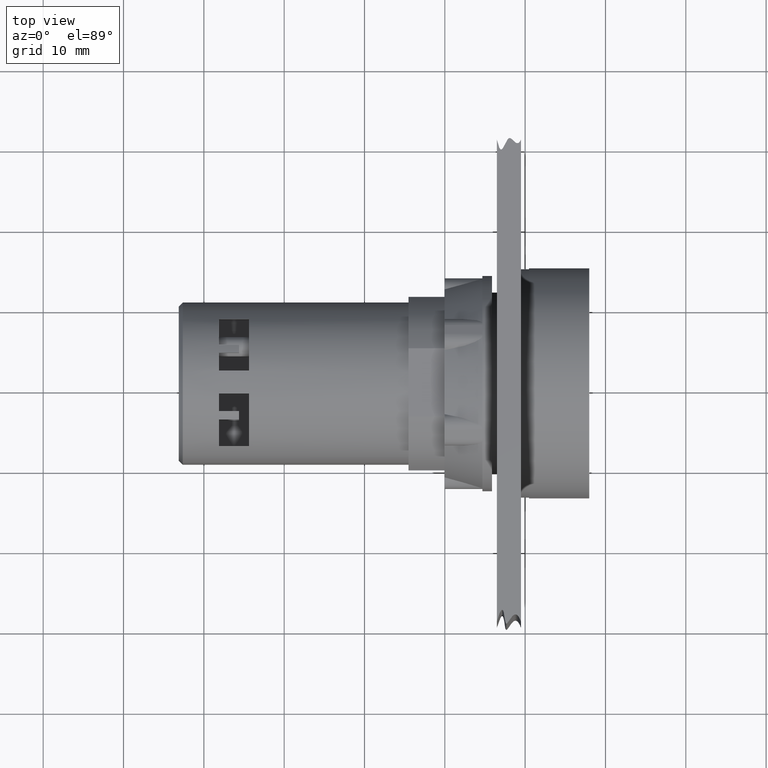
[diagram: clean part render]
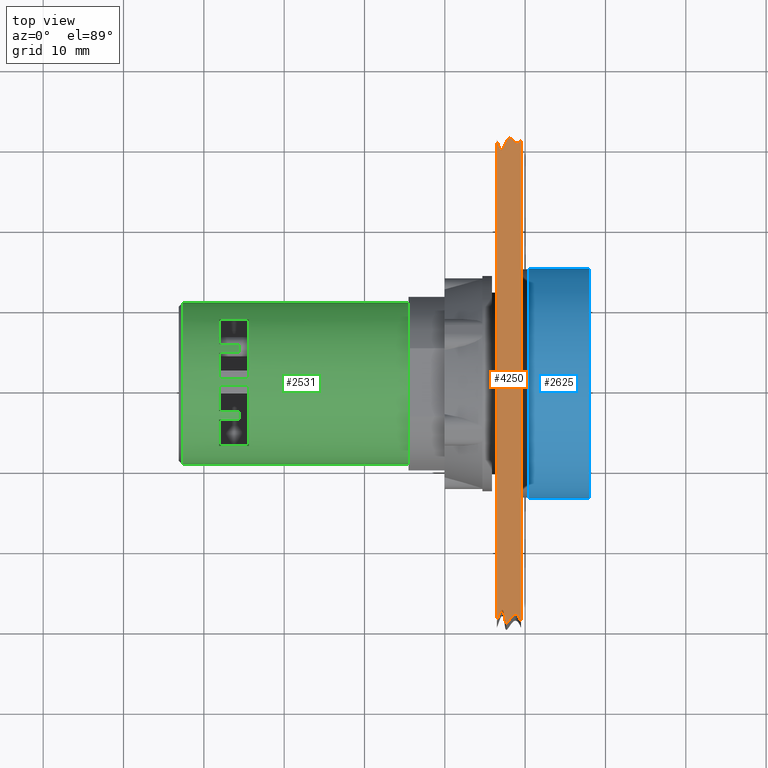
[diagram: same view with three faces highlighted in distinct colors, each labeled with its STEP entity id]
A machine part, top view with three faces highlighted in distinct colors.
Their STEP definitions:

[orange] entity #4250 — the highlighted planar face has unit normal (0, 0, -1).
#4112=CARTESIAN_POINT('',(-12.704183619849179,-2.725398273954287,0.0));
#4113=VERTEX_POINT('',#4112);
#4120=CARTESIAN_POINT('',(-15.704183619849179,-2.725398273954287,0.0));
#4121=VERTEX_POINT('',#4120);
#4122=CARTESIAN_POINT('',(-12.704183619849175,-2.725398273954286,0.0));
#4123=CARTESIAN_POINT('',(-13.683988853155304,-7.243589001706696,0.0));
#4124=CARTESIAN_POINT('',(-13.964099132856656,2.032835085571791,0.0));
#4125=CARTESIAN_POINT('',(-14.667084388146536,-4.961008747338168,0.0));
#4126=CARTESIAN_POINT('',(-15.704183619849177,-2.725398273954286,0.0));
#4127=QUASI_UNIFORM_CURVE('',4,(#4122,#4123,#4124,#4125,#4126),.UNSPECIFIED.,.F.,.U.);
#4128=EDGE_CURVE('',#4113,#4121,#4127,.T.);
#4152=CARTESIAN_POINT('',(-12.704183619849172,-62.725398273954283,0.0));
#4153=VERTEX_POINT('',#4152);
#4160=CARTESIAN_POINT('',(-12.704183619849172,-62.725398273954283,0.0));
#4161=DIRECTION('',(0.0,1.0,0.0));
#4162=VECTOR('',#4161,60.0);
#4163=LINE('',#4160,#4162);
#4164=EDGE_CURVE('',#4153,#4113,#4163,.T.);
#4194=CARTESIAN_POINT('',(-15.704183619849179,-62.725398273954283,0.0));
#4195=VERTEX_POINT('',#4194);
#4202=CARTESIAN_POINT('',(-15.704183619849182,-62.725398273954283,0.0));
#4203=CARTESIAN_POINT('',(-14.283734517597093,-58.710287807173117,0.0));
#4204=CARTESIAN_POINT('',(-13.047229203726467,-69.825373706267470,0.0));
#4205=CARTESIAN_POINT('',(-14.371498841514271,-57.028426828334801,0.0));
#4206=CARTESIAN_POINT('',(-12.704183619849177,-62.725398273954298,0.0));
#4207=QUASI_UNIFORM_CURVE('',4,(#4202,#4203,#4204,#4205,#4206),.UNSPECIFIED.,.F.,.U.);
#4208=EDGE_CURVE('',#4195,#4153,#4207,.T.);
#4226=CARTESIAN_POINT('',(-15.704183619849179,-2.725398273954287,0.0));
#4227=DIRECTION('',(0.0,-1.0,0.0));
#4228=VECTOR('',#4227,60.0);
#4229=LINE('',#4226,#4228);
#4230=EDGE_CURVE('',#4121,#4195,#4229,.T.);
#4239=CARTESIAN_POINT('',(-14.194110455510167,-33.005767774691193,0.0));
#4240=DIRECTION('',(0.0,0.0,1.0));
#4241=DIRECTION('',(1.0,0.0,0.0));
#4242=AXIS2_PLACEMENT_3D('',#4239,#4240,#4241);
#4243=PLANE('',#4242);
#4244=ORIENTED_EDGE('',*,*,#4230,.F.);
#4245=ORIENTED_EDGE('',*,*,#4128,.F.);
#4246=ORIENTED_EDGE('',*,*,#4164,.F.);
#4247=ORIENTED_EDGE('',*,*,#4208,.F.);
#4248=EDGE_LOOP('',(#4244,#4245,#4246,#4247));
#4249=FACE_OUTER_BOUND('',#4248,.T.);
#4250=ADVANCED_FACE('',(#4249),#4243,.F.);

[blue] entity #2625 — the highlighted cylindrical surface (bore or boss wall) has radius 14.35 mm, axis along (1, 0, 0).
#2591=CARTESIAN_POINT('',(0.477402920957430,15.099713552126415,0.0));
#2592=VERTEX_POINT('',#2591);
#2593=CARTESIAN_POINT('',(0.477402920957430,0.749713552126411,0.0));
#2594=DIRECTION('',(1.0,1.449993E-013,0.0));
#2595=DIRECTION('',(-1.449993E-013,1.0,0.0));
#2596=AXIS2_PLACEMENT_3D('',#2593,#2594,#2595);
#2597=CIRCLE('',#2596,14.350000000000005);
#2598=EDGE_CURVE('',#2592,#2592,#2597,.T.);
#2606=CARTESIAN_POINT('',(4.227402920957431,0.749713552126411,0.0));
#2607=DIRECTION('',(1.0,0.0,0.0));
#2608=DIRECTION('',(-1.449993E-013,1.0,0.0));
#2609=AXIS2_PLACEMENT_3D('',#2606,#2607,#2608);
#2610=CYLINDRICAL_SURFACE('',#2609,14.350000000000007);
#2611=CARTESIAN_POINT('',(7.977402920957431,15.099713552126417,0.0));
#2612=VERTEX_POINT('',#2611);
#2613=CARTESIAN_POINT('',(7.977402920957431,0.749713552126411,0.0));
#2614=DIRECTION('',(1.0,1.449993E-013,0.0));
#2615=DIRECTION('',(-1.449993E-013,1.0,0.0));
#2616=AXIS2_PLACEMENT_3D('',#2613,#2614,#2615);
#2617=CIRCLE('',#2616,14.350000000000007);
#2618=EDGE_CURVE('',#2612,#2612,#2617,.T.);
#2619=ORIENTED_EDGE('',*,*,#2618,.F.);
#2620=EDGE_LOOP('',(#2619));
#2621=FACE_OUTER_BOUND('',#2620,.T.);
#2622=ORIENTED_EDGE('',*,*,#2598,.T.);
#2623=EDGE_LOOP('',(#2622));
#2624=FACE_BOUND('',#2623,.T.);
#2625=ADVANCED_FACE('',(#2621,#2624),#2610,.T.);

[green] entity #2531 — the highlighted cylindrical surface (bore or boss wall) has radius 10.1 mm, axis along (1, 0, 0).
#112=CARTESIAN_POINT('',(-38.122597079042563,1.179182738147887,-10.090864988605190));
#113=VERTEX_POINT('',#112);
#114=CARTESIAN_POINT('',(-34.372597079042571,1.179182738147886,-10.090864988605190));
#115=VERTEX_POINT('',#114);
#116=CARTESIAN_POINT('',(-38.122597079042563,1.179182738147887,-10.090864988605190));
#117=DIRECTION('',(1.0,0.0,0.0));
#118=VECTOR('',#117,3.749999999999993);
#119=LINE('',#116,#118);
#120=EDGE_CURVE('',#113,#115,#119,.T.);
#152=CARTESIAN_POINT('',(-38.122597079042563,4.429182738147889,-9.405929327244515));
#153=VERTEX_POINT('',#152);
#154=CARTESIAN_POINT('',(-38.122597079042563,0.749713552126411,0.0));
#155=DIRECTION('',(-1.0,-1.449993E-013,0.0));
#156=DIRECTION('',(-1.449993E-013,1.0,0.0));
#157=AXIS2_PLACEMENT_3D('',#154,#155,#156);
#158=CIRCLE('',#157,10.100000000000000);
#159=EDGE_CURVE('',#153,#113,#158,.T.);
#232=CARTESIAN_POINT('',(-35.622597079042563,4.429182738147887,-9.405929327244515));
#233=VERTEX_POINT('',#232);
#234=CARTESIAN_POINT('',(-35.622597079042563,4.429182738147887,-9.405929327244515));
#235=DIRECTION('',(-1.0,0.0,0.0));
#236=VECTOR('',#235,2.500000000000000);
#237=LINE('',#234,#236);
#238=EDGE_CURVE('',#233,#153,#237,.T.);
#295=CARTESIAN_POINT('',(-35.622597079042563,5.429182738147888,-8.950562448085343));
#296=VERTEX_POINT('',#295);
#297=CARTESIAN_POINT('',(-35.622597079042563,0.749713552126411,0.0));
#298=DIRECTION('',(-1.0,-1.449993E-013,0.0));
#299=DIRECTION('',(-1.449993E-013,1.0,0.0));
#300=AXIS2_PLACEMENT_3D('',#297,#298,#299);
#301=CIRCLE('',#300,10.100000000000000);
#302=EDGE_CURVE('',#296,#233,#301,.T.);
#359=CARTESIAN_POINT('',(-34.372597079042571,8.679182738147890,-6.255678894247679));
#360=VERTEX_POINT('',#359);
#361=CARTESIAN_POINT('',(-34.372597079042571,0.749713552126411,0.0));
#362=DIRECTION('',(1.0,1.449993E-013,0.0));
#363=DIRECTION('',(-1.449993E-013,1.0,0.0));
#364=AXIS2_PLACEMENT_3D('',#361,#362,#363);
#365=CIRCLE('',#364,10.100000000000000);
#366=EDGE_CURVE('',#115,#360,#365,.T.);
#402=CARTESIAN_POINT('',(-38.122597079042563,8.679182738147890,-6.255678894247679));
#403=VERTEX_POINT('',#402);
#404=CARTESIAN_POINT('',(-34.372597079042571,8.679182738147890,-6.255678894247679));
#405=DIRECTION('',(-1.0,0.0,0.0));
#406=VECTOR('',#405,3.749999999999993);
#407=LINE('',#404,#406);
#408=EDGE_CURVE('',#360,#403,#407,.T.);
#433=CARTESIAN_POINT('',(-38.122597079042571,5.429182738147888,-8.950562448085343));
#434=VERTEX_POINT('',#433);
#435=CARTESIAN_POINT('',(-38.122597079042563,0.749713552126411,0.0));
#436=DIRECTION('',(-1.0,-1.449993E-013,0.0));
#437=DIRECTION('',(-1.449993E-013,1.0,0.0));
#438=AXIS2_PLACEMENT_3D('',#435,#436,#437);
#439=CIRCLE('',#438,10.100000000000000);
#440=EDGE_CURVE('',#403,#434,#439,.T.);
#473=CARTESIAN_POINT('',(-38.122597079042571,5.429182738147888,-8.950562448085343));
#474=DIRECTION('',(1.0,0.0,0.0));
#475=VECTOR('',#474,2.500000000000007);
#476=LINE('',#473,#475);
#477=EDGE_CURVE('',#434,#296,#476,.T.);
#511=CARTESIAN_POINT('',(-38.122597079042578,-7.120817261852111,-6.329671769232159));
#512=VERTEX_POINT('',#511);
#513=CARTESIAN_POINT('',(-34.372597079042585,-7.120817261852111,-6.329671769232159));
#514=VERTEX_POINT('',#513);
#515=CARTESIAN_POINT('',(-38.122597079042578,-7.120817261852111,-6.329671769232159));
#516=DIRECTION('',(1.0,0.0,0.0));
#517=VECTOR('',#516,3.749999999999993);
#518=LINE('',#515,#517);
#519=EDGE_CURVE('',#512,#514,#518,.T.);
#551=CARTESIAN_POINT('',(-38.122597079042578,-3.870817261852113,-8.981129939883676));
#552=VERTEX_POINT('',#551);
#553=CARTESIAN_POINT('',(-38.122597079042578,0.749713552126411,0.0));
#554=DIRECTION('',(-1.0,-1.449993E-013,0.0));
#555=DIRECTION('',(-1.449993E-013,1.0,0.0));
#556=AXIS2_PLACEMENT_3D('',#553,#554,#555);
#557=CIRCLE('',#556,10.100000000000000);
#558=EDGE_CURVE('',#552,#512,#557,.T.);
#631=CARTESIAN_POINT('',(-35.622597079042578,-3.870817261852114,-8.981129939883676));
#632=VERTEX_POINT('',#631);
#633=CARTESIAN_POINT('',(-35.622597079042578,-3.870817261852114,-8.981129939883676));
#634=DIRECTION('',(-1.0,0.0,0.0));
#635=VECTOR('',#634,2.500000000000000);
#636=LINE('',#633,#635);
#637=EDGE_CURVE('',#632,#552,#636,.T.);
#694=CARTESIAN_POINT('',(-35.622597079042578,-2.870817261852113,-9.428772805886883));
#695=VERTEX_POINT('',#694);
#696=CARTESIAN_POINT('',(-35.622597079042578,0.749713552126411,0.0));
#697=DIRECTION('',(-1.0,-1.449993E-013,0.0));
#698=DIRECTION('',(-1.449993E-013,1.0,0.0));
#699=AXIS2_PLACEMENT_3D('',#696,#697,#698);
#700=CIRCLE('',#699,10.100000000000000);
#701=EDGE_CURVE('',#695,#632,#700,.T.);
#758=CARTESIAN_POINT('',(-34.372597079042585,0.379182738147886,-10.093201024248570));
#759=VERTEX_POINT('',#758);
#760=CARTESIAN_POINT('',(-34.372597079042585,0.749713552126411,0.0));
#761=DIRECTION('',(1.0,1.449993E-013,0.0));
#762=DIRECTION('',(-1.449993E-013,1.0,0.0));
#763=AXIS2_PLACEMENT_3D('',#760,#761,#762);
#764=CIRCLE('',#763,10.100000000000000);
#765=EDGE_CURVE('',#514,#759,#764,.T.);
#801=CARTESIAN_POINT('',(-38.122597079042571,0.379182738147887,-10.093201024248570));
#802=VERTEX_POINT('',#801);
#803=CARTESIAN_POINT('',(-34.372597079042585,0.379182738147886,-10.093201024248570));
#804=DIRECTION('',(-1.0,0.0,0.0));
#805=VECTOR('',#804,3.749999999999986);
#806=LINE('',#803,#805);
#807=EDGE_CURVE('',#759,#802,#806,.T.);
#832=CARTESIAN_POINT('',(-38.122597079042571,-2.870817261852113,-9.428772805886883));
#833=VERTEX_POINT('',#832);
#834=CARTESIAN_POINT('',(-38.122597079042571,0.749713552126411,0.0));
#835=DIRECTION('',(-1.0,-1.449993E-013,0.0));
#836=DIRECTION('',(-1.449993E-013,1.0,0.0));
#837=AXIS2_PLACEMENT_3D('',#834,#835,#836);
#838=CIRCLE('',#837,10.100000000000000);
#839=EDGE_CURVE('',#802,#833,#838,.T.);
#872=CARTESIAN_POINT('',(-38.122597079042571,-2.870817261852113,-9.428772805886883));
#873=DIRECTION('',(1.0,0.0,0.0));
#874=VECTOR('',#873,2.499999999999993);
#875=LINE('',#872,#874);
#876=EDGE_CURVE('',#833,#695,#875,.T.);
#975=CARTESIAN_POINT('',(-35.622597079042578,-2.870817261852103,9.428772805886887));
#976=VERTEX_POINT('',#975);
#983=CARTESIAN_POINT('',(-35.622597079042578,-3.870817261852102,8.981129939883681));
#984=VERTEX_POINT('',#983);
#985=CARTESIAN_POINT('',(-35.622597079042578,0.749713552126411,0.0));
#986=DIRECTION('',(-1.0,-1.449993E-013,0.0));
#987=DIRECTION('',(-1.449993E-013,1.0,0.0));
#988=AXIS2_PLACEMENT_3D('',#985,#986,#987);
#989=CIRCLE('',#988,10.100000000000000);
#990=EDGE_CURVE('',#984,#976,#989,.T.);
#1015=CARTESIAN_POINT('',(-38.122597079042578,-3.870817261852102,8.981129939883681));
#1016=VERTEX_POINT('',#1015);
#1017=CARTESIAN_POINT('',(-38.122597079042578,-3.870817261852102,8.981129939883681));
#1018=DIRECTION('',(1.0,0.0,0.0));
#1019=VECTOR('',#1018,2.500000000000000);
#1020=LINE('',#1017,#1019);
#1021=EDGE_CURVE('',#1016,#984,#1020,.T.);
#1045=CARTESIAN_POINT('',(-38.122597079042571,-2.870817261852102,9.428772805886887));
#1046=VERTEX_POINT('',#1045);
#1053=CARTESIAN_POINT('',(-35.622597079042578,-2.870817261852103,9.428772805886887));
#1054=DIRECTION('',(-1.0,0.0,0.0));
#1055=VECTOR('',#1054,2.499999999999993);
#1056=LINE('',#1053,#1055);
#1057=EDGE_CURVE('',#976,#1046,#1056,.T.);
#1101=CARTESIAN_POINT('',(-38.122597079042571,-0.668031135749366,10.0));
#1102=VERTEX_POINT('',#1101);
#1109=CARTESIAN_POINT('',(-38.122597079042571,0.749713552126411,0.0));
#1110=DIRECTION('',(-1.0,-1.449993E-013,0.0));
#1111=DIRECTION('',(-1.449993E-013,1.0,0.0));
#1112=AXIS2_PLACEMENT_3D('',#1109,#1110,#1111);
#1113=CIRCLE('',#1112,10.100000000000000);
#1114=EDGE_CURVE('',#1046,#1102,#1113,.T.);
#1125=CARTESIAN_POINT('',(-34.372597079042585,-0.668031135749366,10.0));
#1126=VERTEX_POINT('',#1125);
#1127=CARTESIAN_POINT('',(-38.122597079042571,-0.668031135749366,10.0));
#1128=DIRECTION('',(1.0,0.0,0.0));
#1129=VECTOR('',#1128,3.749999999999986);
#1130=LINE('',#1127,#1129);
#1131=EDGE_CURVE('',#1102,#1126,#1130,.T.);
#1166=CARTESIAN_POINT('',(-38.122597079042578,-7.120817261852103,6.329671769232171));
#1167=VERTEX_POINT('',#1166);
#1168=CARTESIAN_POINT('',(-38.122597079042578,0.749713552126411,0.0));
#1169=DIRECTION('',(-1.0,-1.449993E-013,0.0));
#1170=DIRECTION('',(-1.449993E-013,1.0,0.0));
#1171=AXIS2_PLACEMENT_3D('',#1168,#1169,#1170);
#1172=CIRCLE('',#1171,10.100000000000000);
#1173=EDGE_CURVE('',#1167,#1016,#1172,.T.);
#1314=CARTESIAN_POINT('',(-34.372597079042585,-7.120817261852105,6.329671769232168));
#1315=VERTEX_POINT('',#1314);
#1316=CARTESIAN_POINT('',(-34.372597079042585,0.749713552126411,0.0));
#1317=DIRECTION('',(1.0,1.449993E-013,0.0));
#1318=DIRECTION('',(-1.449993E-013,1.0,0.0));
#1319=AXIS2_PLACEMENT_3D('',#1316,#1317,#1318);
#1320=CIRCLE('',#1319,10.100000000000000);
#1321=EDGE_CURVE('',#1126,#1315,#1320,.T.);
#1358=CARTESIAN_POINT('',(-34.372597079042585,-7.120817261852105,6.329671769232168));
#1359=DIRECTION('',(-1.0,0.0,0.0));
#1360=VECTOR('',#1359,3.749999999999993);
#1361=LINE('',#1358,#1360);
#1362=EDGE_CURVE('',#1315,#1167,#1361,.T.);
#1423=CARTESIAN_POINT('',(-38.122597079042563,8.679182738147897,6.255678894247668));
#1424=VERTEX_POINT('',#1423);
#1431=CARTESIAN_POINT('',(-38.122597079042571,5.429182738147897,8.950562448085339));
#1432=VERTEX_POINT('',#1431);
#1433=CARTESIAN_POINT('',(-38.122597079042571,0.749713552126411,0.0));
#1434=DIRECTION('',(-1.0,-1.449993E-013,0.0));
#1435=DIRECTION('',(-1.449993E-013,1.0,0.0));
#1436=AXIS2_PLACEMENT_3D('',#1433,#1434,#1435);
#1437=CIRCLE('',#1436,10.100000000000000);
#1438=EDGE_CURVE('',#1432,#1424,#1437,.T.);
#1463=CARTESIAN_POINT('',(-35.622597079042563,5.429182738147897,8.950562448085339));
#1464=VERTEX_POINT('',#1463);
#1465=CARTESIAN_POINT('',(-35.622597079042563,5.429182738147897,8.950562448085339));
#1466=DIRECTION('',(-1.0,0.0,0.0));
#1467=VECTOR('',#1466,2.500000000000007);
#1468=LINE('',#1465,#1467);
#1469=EDGE_CURVE('',#1464,#1432,#1468,.T.);
#1485=CARTESIAN_POINT('',(-34.372597079042571,8.679182738147897,6.255678894247668));
#1486=VERTEX_POINT('',#1485);
#1487=CARTESIAN_POINT('',(-38.122597079042563,8.679182738147897,6.255678894247668));
#1488=DIRECTION('',(1.0,0.0,0.0));
#1489=VECTOR('',#1488,3.749999999999993);
#1490=LINE('',#1487,#1489);
#1491=EDGE_CURVE('',#1424,#1486,#1490,.T.);
#1526=CARTESIAN_POINT('',(-35.622597079042563,4.429182738147897,9.405929327244511));
#1527=VERTEX_POINT('',#1526);
#1528=CARTESIAN_POINT('',(-35.622597079042563,0.749713552126411,0.0));
#1529=DIRECTION('',(-1.0,-1.449993E-013,0.0));
#1530=DIRECTION('',(-1.449993E-013,1.0,0.0));
#1531=AXIS2_PLACEMENT_3D('',#1528,#1529,#1530);
#1532=CIRCLE('',#1531,10.100000000000000);
#1533=EDGE_CURVE('',#1527,#1464,#1532,.T.);
#1558=CARTESIAN_POINT('',(-38.122597079042563,4.429182738147899,9.405929327244511));
#1559=VERTEX_POINT('',#1558);
#1560=CARTESIAN_POINT('',(-38.122597079042563,4.429182738147899,9.405929327244511));
#1561=DIRECTION('',(1.0,0.0,0.0));
#1562=VECTOR('',#1561,2.500000000000000);
#1563=LINE('',#1560,#1562);
#1564=EDGE_CURVE('',#1559,#1527,#1563,.T.);
#1580=CARTESIAN_POINT('',(-34.372597079042571,2.167458240002199,9.999999999999998));
#1581=VERTEX_POINT('',#1580);
#1582=CARTESIAN_POINT('',(-38.122597079042563,2.167458240002199,9.999999999999998));
#1583=VERTEX_POINT('',#1582);
#1584=CARTESIAN_POINT('',(-34.372597079042571,2.167458240002199,9.999999999999998));
#1585=DIRECTION('',(-1.0,0.0,0.0));
#1586=VECTOR('',#1585,3.749999999999993);
#1587=LINE('',#1584,#1586);
#1588=EDGE_CURVE('',#1581,#1583,#1587,.T.);
#1620=CARTESIAN_POINT('',(-34.372597079042571,0.749713552126411,0.0));
#1621=DIRECTION('',(1.0,1.449993E-013,0.0));
#1622=DIRECTION('',(-1.449993E-013,1.0,0.0));
#1623=AXIS2_PLACEMENT_3D('',#1620,#1621,#1622);
#1624=CIRCLE('',#1623,10.100000000000000);
#1625=EDGE_CURVE('',#1486,#1581,#1624,.T.);
#1672=CARTESIAN_POINT('',(-38.122597079042563,0.749713552126411,0.0));
#1673=DIRECTION('',(-1.0,-1.449993E-013,0.0));
#1674=DIRECTION('',(-1.449993E-013,1.0,0.0));
#1675=AXIS2_PLACEMENT_3D('',#1672,#1673,#1674);
#1676=CIRCLE('',#1675,10.100000000000000);
#1677=EDGE_CURVE('',#1583,#1559,#1676,.T.);
#2255=CARTESIAN_POINT('',(-14.522597079042569,-9.350286447873589,0.0));
#2256=VERTEX_POINT('',#2255);
#2318=CARTESIAN_POINT('',(-14.522597079042569,10.849713552126413,0.0));
#2319=VERTEX_POINT('',#2318);
#2399=CARTESIAN_POINT('',(-14.522597079042567,0.749713552126411,0.0));
#2400=DIRECTION('',(1.0,1.449993E-013,0.0));
#2401=DIRECTION('',(-1.449993E-013,1.0,0.0));
#2402=AXIS2_PLACEMENT_3D('',#2399,#2400,#2401);
#2403=CIRCLE('',#2402,10.100000000000005);
#2404=EDGE_CURVE('',#2256,#2319,#2403,.T.);
#2440=CARTESIAN_POINT('',(-42.622597079042571,10.849713552126410,-1.236852E-015));
#2441=VERTEX_POINT('',#2440);
#2442=CARTESIAN_POINT('',(-42.622597079041107,0.749713552126411,0.0));
#2443=DIRECTION('',(-1.0,-1.449993E-013,0.0));
#2444=DIRECTION('',(1.449993E-013,-1.0,0.0));
#2445=AXIS2_PLACEMENT_3D('',#2442,#2443,#2444);
#2446=CIRCLE('',#2445,10.100000000000000);
#2447=EDGE_CURVE('',#2441,#2441,#2446,.T.);
#2473=CARTESIAN_POINT('',(-28.822597079042570,0.749713552126411,0.0));
#2474=DIRECTION('',(1.0,0.0,0.0));
#2475=DIRECTION('',(-1.449993E-013,1.0,0.0));
#2476=AXIS2_PLACEMENT_3D('',#2473,#2474,#2475);
#2477=CYLINDRICAL_SURFACE('',#2476,10.100000000000000);
#2478=CARTESIAN_POINT('',(-14.522597079042567,0.749713552126411,0.0));
#2479=DIRECTION('',(1.0,1.449993E-013,0.0));
#2480=DIRECTION('',(-1.449993E-013,1.0,0.0));
#2481=AXIS2_PLACEMENT_3D('',#2478,#2479,#2480);
#2482=CIRCLE('',#2481,10.100000000000005);
#2483=EDGE_CURVE('',#2319,#2256,#2482,.T.);
#2484=ORIENTED_EDGE('',*,*,#2483,.F.);
#2485=ORIENTED_EDGE('',*,*,#2404,.F.);
#2486=EDGE_LOOP('',(#2484,#2485));
#2487=FACE_OUTER_BOUND('',#2486,.T.);
#2488=ORIENTED_EDGE('',*,*,#366,.T.);
#2489=ORIENTED_EDGE('',*,*,#408,.T.);
#2490=ORIENTED_EDGE('',*,*,#440,.T.);
#2491=ORIENTED_EDGE('',*,*,#477,.T.);
#2492=ORIENTED_EDGE('',*,*,#302,.T.);
#2493=ORIENTED_EDGE('',*,*,#238,.T.);
#2494=ORIENTED_EDGE('',*,*,#159,.T.);
#2495=ORIENTED_EDGE('',*,*,#120,.T.);
#2496=EDGE_LOOP('',(#2488,#2489,#2490,#2491,#2492,#2493,#2494,#2495));
#2497=FACE_BOUND('',#2496,.T.);
#2498=ORIENTED_EDGE('',*,*,#765,.T.);
#2499=ORIENTED_EDGE('',*,*,#807,.T.);
#2500=ORIENTED_EDGE('',*,*,#839,.T.);
#2501=ORIENTED_EDGE('',*,*,#876,.T.);
#2502=ORIENTED_EDGE('',*,*,#701,.T.);
#2503=ORIENTED_EDGE('',*,*,#637,.T.);
#2504=ORIENTED_EDGE('',*,*,#558,.T.);
#2505=ORIENTED_EDGE('',*,*,#519,.T.);
#2506=EDGE_LOOP('',(#2498,#2499,#2500,#2501,#2502,#2503,#2504,#2505));
#2507=FACE_BOUND('',#2506,.T.);
#2508=ORIENTED_EDGE('',*,*,#1321,.T.);
#2509=ORIENTED_EDGE('',*,*,#1362,.T.);
#2510=ORIENTED_EDGE('',*,*,#1173,.T.);
#2511=ORIENTED_EDGE('',*,*,#1021,.T.);
#2512=ORIENTED_EDGE('',*,*,#990,.T.);
#2513=ORIENTED_EDGE('',*,*,#1057,.T.);
#2514=ORIENTED_EDGE('',*,*,#1114,.T.);
#2515=ORIENTED_EDGE('',*,*,#1131,.T.);
#2516=EDGE_LOOP('',(#2508,#2509,#2510,#2511,#2512,#2513,#2514,#2515));
#2517=FACE_BOUND('',#2516,.T.);
#2518=ORIENTED_EDGE('',*,*,#1677,.T.);
#2519=ORIENTED_EDGE('',*,*,#1564,.T.);
#2520=ORIENTED_EDGE('',*,*,#1533,.T.);
#2521=ORIENTED_EDGE('',*,*,#1469,.T.);
#2522=ORIENTED_EDGE('',*,*,#1438,.T.);
#2523=ORIENTED_EDGE('',*,*,#1491,.T.);
#2524=ORIENTED_EDGE('',*,*,#1625,.T.);
#2525=ORIENTED_EDGE('',*,*,#1588,.T.);
#2526=EDGE_LOOP('',(#2518,#2519,#2520,#2521,#2522,#2523,#2524,#2525));
#2527=FACE_BOUND('',#2526,.T.);
#2528=ORIENTED_EDGE('',*,*,#2447,.F.);
#2529=EDGE_LOOP('',(#2528));
#2530=FACE_BOUND('',#2529,.T.);
#2531=ADVANCED_FACE('',(#2487,#2497,#2507,#2517,#2527,#2530),#2477,.T.);